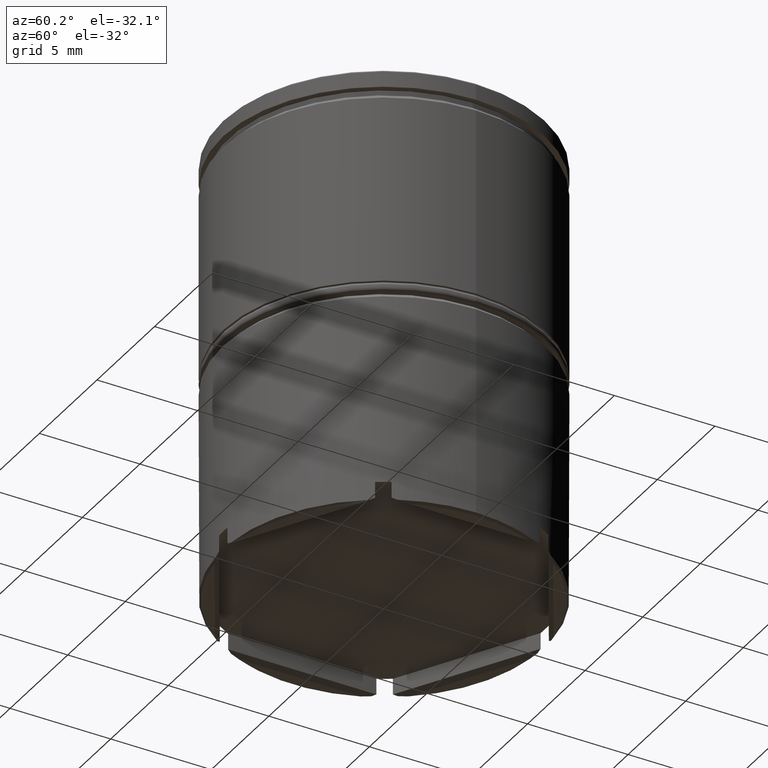
[diagram: clean part render]
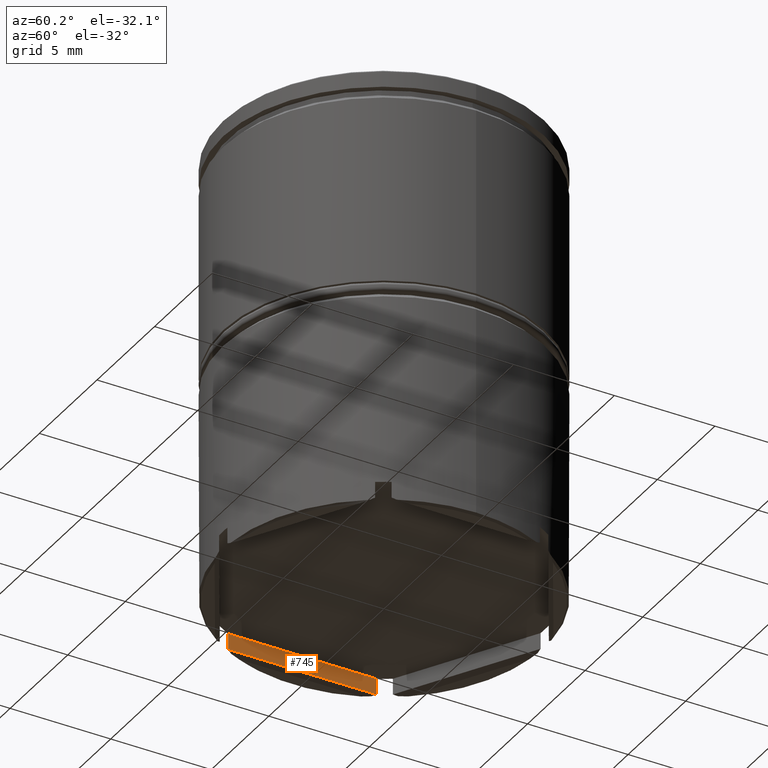
[diagram: same view with one face highlighted and labeled with its STEP entity id]
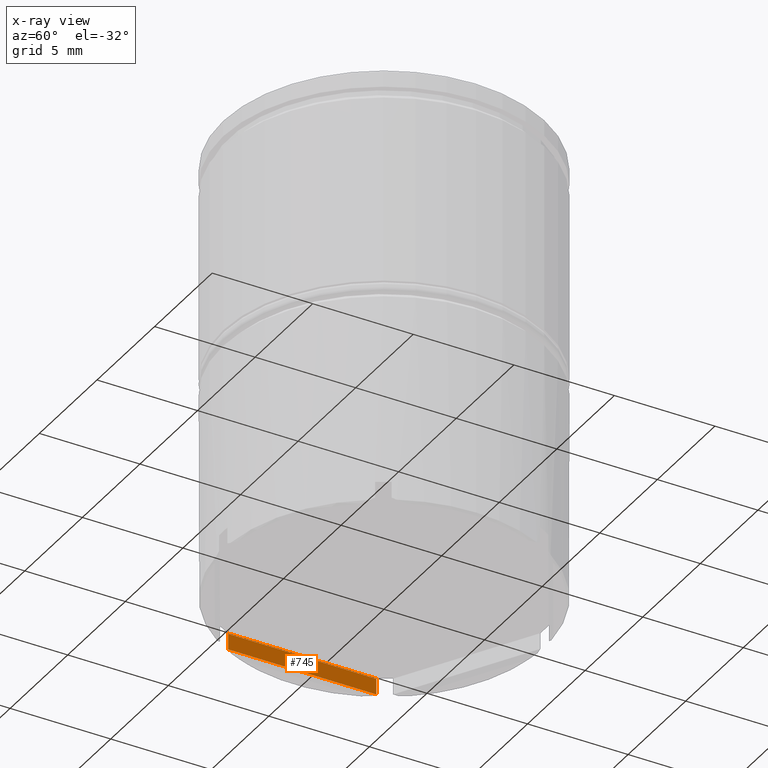
[diagram: x-ray of the same camera — body ghosted, the highlighted face saturated]
A machine part, auxiliary view. The second image highlights one B-rep face of the part: STEP entity #745.
The next image is the same camera in x-ray: the body ghosted, the highlighted face saturated — about 0% of this face is hidden behind the body in this view.
In plain terms, the highlighted planar face has unit normal (-1, -0, 0).
Its self-contained STEP definition (entity closure, byte-faithful):
#33 = LINE ( 'NONE', #544, #1086 ) ;
#42 = VERTEX_POINT ( 'NONE', #756 ) ;
#66 = ORIENTED_EDGE ( 'NONE', *, *, #467, .T. ) ;
#68 = DIRECTION ( 'NONE',  ( -0.000000000000000000, -0.000000000000000000, 1.000000000000000000 ) ) ;
#77 = VECTOR ( 'NONE', #68, 1000.000000000000000 ) ;
#86 = EDGE_CURVE ( 'NONE', #327, #42, #504, .T. ) ;
#118 = CARTESIAN_POINT ( 'NONE',  ( -7.100000000000004086, -3.686461718233344342, -20.99999999999999645 ) ) ;
#154 = DIRECTION ( 'NONE',  ( -1.000000000000000000, -2.115936054559378087E-16, 0.000000000000000000 ) ) ;
#180 = FACE_OUTER_BOUND ( 'NONE', #1112, .T. ) ;
#220 = VERTEX_POINT ( 'NONE', #429 ) ;
#316 = VECTOR ( 'NONE', #1080, 1000.000000000000000 ) ;
#317 = LINE ( 'NONE', #1435, #77 ) ;
#327 = VERTEX_POINT ( 'NONE', #1534 ) ;
#403 = PLANE ( 'NONE',  #1419 ) ;
#429 = CARTESIAN_POINT ( 'NONE',  ( -7.100000000000005862, 3.686461718233341678, -20.99999999999999645 ) ) ;
#466 = EDGE_CURVE ( 'NONE', #42, #220, #317, .T. ) ;
#467 = EDGE_CURVE ( 'NONE', #696, #327, #546, .T. ) ;
#504 = LINE ( 'NONE', #883, #1026 ) ;
#544 = CARTESIAN_POINT ( 'NONE',  ( -7.100000000000004086, -4.099186911246345488, -20.99999999999999645 ) ) ;
#546 = LINE ( 'NONE', #1453, #316 ) ;
#696 = VERTEX_POINT ( 'NONE', #118 ) ;
#745 = ADVANCED_FACE ( 'NONE', ( #180 ), #403, .F. ) ;
#756 = CARTESIAN_POINT ( 'NONE',  ( -7.100000000000005862, 3.686461718233341678, -21.80000000000000782 ) ) ;
#763 = DIRECTION ( 'NONE',  ( -2.115936054559378087E-16, 1.000000000000000000, 0.000000000000000000 ) ) ;
#830 = ORIENTED_EDGE ( 'NONE', *, *, #1535, .F. ) ;
#883 = CARTESIAN_POINT ( 'NONE',  ( -7.100000000000005862, 3.464101615137756163, -21.80000000000000782 ) ) ;
#1026 = VECTOR ( 'NONE', #763, 1000.000000000000000 ) ;
#1080 = DIRECTION ( 'NONE',  ( 0.000000000000000000, 0.000000000000000000, -1.000000000000000000 ) ) ;
#1086 = VECTOR ( 'NONE', #1416, 1000.000000000000000 ) ;
#1112 = EDGE_LOOP ( 'NONE', ( #66, #1384, #1377, #830 ) ) ;
#1168 = CARTESIAN_POINT ( 'NONE',  ( -7.100000000000004086, -4.099186911246345488, -20.99999999999999645 ) ) ;
#1377 = ORIENTED_EDGE ( 'NONE', *, *, #466, .T. ) ;
#1384 = ORIENTED_EDGE ( 'NONE', *, *, #86, .T. ) ;
#1411 = DIRECTION ( 'NONE',  ( 2.115936054559378087E-16, -1.000000000000000000, 0.000000000000000000 ) ) ;
#1416 = DIRECTION ( 'NONE',  ( -2.115936054559378087E-16, 1.000000000000000000, 0.000000000000000000 ) ) ;
#1419 = AXIS2_PLACEMENT_3D ( 'NONE', #1168, #154, #1411 ) ;
#1435 = CARTESIAN_POINT ( 'NONE',  ( -7.100000000000005862, 3.686461718233341678, 0.000000000000000000 ) ) ;
#1453 = CARTESIAN_POINT ( 'NONE',  ( -7.100000000000004086, -3.686461718233344342, 0.000000000000000000 ) ) ;
#1534 = CARTESIAN_POINT ( 'NONE',  ( -7.100000000000004086, -3.686461718233344342, -21.80000000000000782 ) ) ;
#1535 = EDGE_CURVE ( 'NONE', #696, #220, #33, .T. ) ;